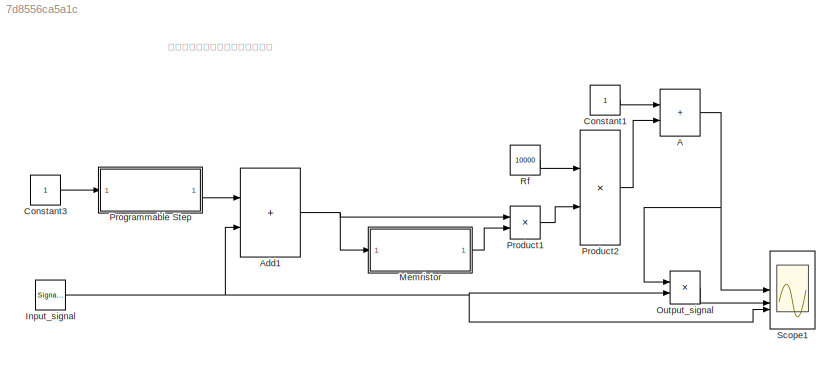
MODEL slx_7d8556ca5a1c
KIND model
CONFIG AbsTol = auto
CONFIG EnableMultiTasking = off
CONFIG FixedStep = auto
CONFIG MaxStep = auto
CONFIG MinStep = auto
CONFIG RelTol = 1e-3
CONFIG SampleTimeConstraint = Unconstrained
CONFIG SolverName = VariableStepAuto
CONFIG StartTime = 0.0
CONFIG StopTime = 10
WORKSPACE source: mxarray member
WORKSPACE R1 = 20
WORKSPACE R2 = 500
WORKSPACE VT = 0.5
WORKSPACE a = 500
WORKSPACE b = 1000
BLOCK [Sum] A
  IconShape = rectangular
BLOCK [Sum] Add1
  IconShape = rectangular
BLOCK [Constant] Constant1
BLOCK [Constant] Constant3
BLOCK [SignalGenerator] Input_signal
  Frequency = 10
  Units = rad/sec
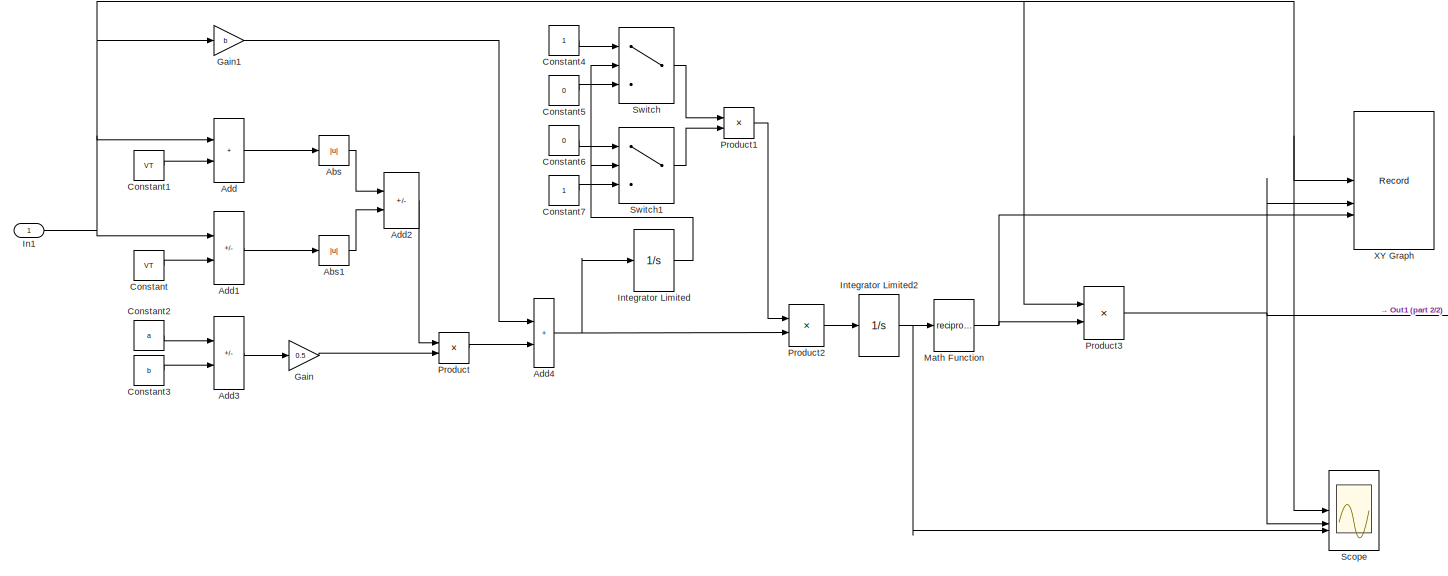
[diagram: Memristor - part 1/2, most of the canvas]
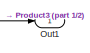
[diagram: Memristor - part 2/2, middle right region]
BLOCK [SubSystem] Memristor
BLOCK [Abs] Memristor/Abs
  SaturateOnIntegerOverflow = off
BLOCK [Abs] Memristor/Abs1
  SaturateOnIntegerOverflow = off
BLOCK [Sum] Memristor/Add
  IconShape = rectangular
BLOCK [Sum] Memristor/Add1
  IconShape = rectangular
  Inputs = +-
BLOCK [Sum] Memristor/Add2
  IconShape = rectangular
  Inputs = +-
BLOCK [Sum] Memristor/Add3
  IconShape = rectangular
  Inputs = +-
BLOCK [Sum] Memristor/Add4
  IconShape = rectangular
BLOCK [Constant] Memristor/Constant
  Value = VT
BLOCK [Constant] Memristor/Constant1
  Value = VT
BLOCK [Constant] Memristor/Constant2
  Value = a
BLOCK [Constant] Memristor/Constant3
  Value = b
BLOCK [Constant] Memristor/Constant4
  SampleTime = 0.001
BLOCK [Constant] Memristor/Constant5
  SampleTime = 0.001
  Value = 0
BLOCK [Constant] Memristor/Constant6
  SampleTime = 0.001
  Value = 0
BLOCK [Constant] Memristor/Constant7
  SampleTime = 0.001
BLOCK [Gain] Memristor/Gain
  Gain = 0.5
BLOCK [Gain] Memristor/Gain1
  Gain = b
BLOCK [Inport] Memristor/In1
BLOCK [Integrator] Memristor/Integrator Limited
  LowerSaturationLimit = 0
  UpperSaturationLimit = 1600
  WrappedStateLowerValue = 0
  WrappedStateUpperValue = 500
BLOCK [Integrator] Memristor/Integrator Limited2
  InitialCondition = 480
  LowerSaturationLimit = 0
  UpperSaturationLimit = 1600
  WrappedStateLowerValue = 0
  WrappedStateUpperValue = 500
BLOCK [Math] Memristor/Math Function
  Operator = reciprocal
BLOCK [Outport] Memristor/Out1
BLOCK [Product] Memristor/Product
BLOCK [Product] Memristor/Product1
BLOCK [Product] Memristor/Product2
BLOCK [Product] Memristor/Product3
BLOCK [Scope] Memristor/Scope
  Floating = off
  NumInputPorts = 3
  ScopeSpecificationString = Simulink.scopes.TimeScopeBlockCfg('CurrentConfiguration', extmgr.ConfigurationSet(extmgr.Configuration('Core','General UI',true),extmgr.Configuration('Core','Source UI',true),extmgr.Configuration('Sources','WiredSimulink',true,'DataLoggingVariableName','ScopeData1'),extmgr.Configuration('Visuals','Time Domain',true,'SerializedDisplays',{struct('MinYLimReal','-1.25','MaxYLimReal','1.25','YLabelReal...<+2911ch>
BLOCK [Switch] Memristor/Switch
  InputSameDT = off
  RndMeth = Ceiling
  SaturateOnIntegerOverflow = off
  Threshold = R1
BLOCK [Switch] Memristor/Switch1
  Criteria = u2 > Threshold
  InputSameDT = off
  RndMeth = Ceiling
  SaturateOnIntegerOverflow = off
  Threshold = R2
BLOCK [Record] Memristor/XY Graph
  CompatibilityTag = XY
  FileSettingsInternal = {"entries":[{"content":{"excelSettings":{"content":{},"type":"Streamout.ExcelSettings"}},"type":"Streamout.FileSettingStorage","uuid":""}],"packageUris":["http:\/\/schema.mathworks.com\/mf0\/streamout_blocks\/R2020a"],"version":"1.0"}
  Layout = [2 2]
  SignalsInternal = {"entries":[{"content":{"signals":[{"content":{"blockPath":[],"dimensions":[1],"domain":"","lineColor":"#a2142f","plots":[ 1, 9 ],"port":1,"signalID":1,"signalName":"In1"},"type":"RecordBlkView.Signal","uuid":""},{"content":{"blockPath":[],"dimensions":[1],"domain":"","lineColor":"#139fff","plots":[ 9 ],"port":2,"signalID":2,"signalName":"Product3"},"type":"RecordBlkView.Signal","uuid":""},{"conte...<+324ch>
  VisualizationBindings = {"xyplotplugin":{"info":[{"series":[{"bindingParametersList":[{"parameter":"X-Axis","signalID":3,"signalName":"Math\nFunction"}],"seriesID":0},{"bindingParametersList":[{"parameter":"X-Axis","signalID":1,"signalName":"In1"},{"parameter":"Y-Axis","signalID":3,"signalName":"Math\nFunction"}],"seriesID":1}],"subplotID":1},{"series":[{"bindingParametersList":[{"parameter":"X-Axis","signalID":1,"signal...<+106ch>
BLOCK [Product] Output_signal
BLOCK [Product] Product1
  Inputs = */
BLOCK [Product] Product2
  Inputs = */
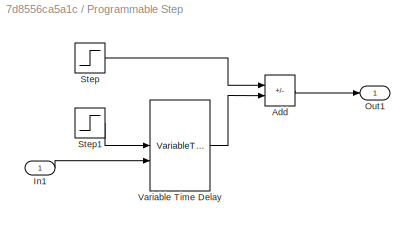
BLOCK [SubSystem] Programmable Step
BLOCK [Sum] Programmable Step/Add
  IconShape = rectangular
  Inputs = +-
BLOCK [Inport] Programmable Step/In1
BLOCK [Outport] Programmable Step/Out1
BLOCK [Step] Programmable Step/Step
  SampleTime = 0
  Time = 0
BLOCK [Step] Programmable Step/Step1
  SampleTime = 0
  Time = 0
BLOCK [VariableTransportDelay] Programmable Step/Variable Time Delay
  MaximumDelay = 10
BLOCK [Constant] Rf
  Value = 10000
BLOCK [Scope] Scope1
  Floating = off
  NumInputPorts = 3
  ScopeSpecificationString = Simulink.scopes.TimeScopeBlockCfg('CurrentConfiguration', extmgr.ConfigurationSet(extmgr.Configuration('Core','General UI',true,'FigureColor',[1 1 1]),extmgr.Configuration('Core','Source UI',true),extmgr.Configuration('Sources','WiredSimulink',true,'DataLoggingVariableName','ScopeData2'),extmgr.Configuration('Visuals','Time Domain',true,'SerializedDisplays',{struct('MinYLimReal','-15.94375','MaxYL...<+1693ch>
ANNOTATION (root): 连续可编程放大倍数的放大器仿真
NET A:1 -> Output_signal:1, Scope1:1
NET Add1:1 -> Memristor:1, Product1:1
LINE Constant1:1 -> A:1
LINE Constant3:1 -> Programmable Step:1
NET Input_signal:1 -> Add1:2, Output_signal:2, Scope1:3
LINE Memristor/Abs1:1 -> Memristor/Add2:2
LINE Memristor/Abs:1 -> Memristor/Add2:1
LINE Memristor/Add1:1 -> Memristor/Abs1:1
LINE Memristor/Add2:1 -> Memristor/Product:1
LINE Memristor/Add3:1 -> Memristor/Gain:1
NET Memristor/Add4:1 -> Memristor/Integrator Limited:1, Memristor/Product2:2
LINE Memristor/Add:1 -> Memristor/Abs:1
LINE Memristor/Constant1:1 -> Memristor/Add:2
LINE Memristor/Constant2:1 -> Memristor/Add3:1
LINE Memristor/Constant3:1 -> Memristor/Add3:2
LINE Memristor/Constant4:1 -> Memristor/Switch:1
LINE Memristor/Constant5:1 -> Memristor/Switch:3
LINE Memristor/Constant6:1 -> Memristor/Switch1:1
LINE Memristor/Constant7:1 -> Memristor/Switch1:3
LINE Memristor/Constant:1 -> Memristor/Add1:2
LINE Memristor/Gain1:1 -> Memristor/Add4:1
LINE Memristor/Gain:1 -> Memristor/Product:2
NET Memristor/In1:1 -> Memristor/Add1:1, Memristor/Add:1, Memristor/Gain1:1, Memristor/Product3:1, Memristor/Scope:1, Memristor/XY Graph:1
NET Memristor/Integrator Limited2:1 -> Memristor/Math Function:1, Memristor/Scope:3
NET Memristor/Integrator Limited:1 -> Memristor/Switch1:2, Memristor/Switch:2
NET Memristor/Math Function:1 -> Memristor/Product3:2, Memristor/XY Graph:3
LINE Memristor/Product1:1 -> Memristor/Product2:1
LINE Memristor/Product2:1 -> Memristor/Integrator Limited2:1
NET Memristor/Product3:1 -> Memristor/Out1:1, Memristor/Scope:2, Memristor/XY Graph:2
LINE Memristor/Product:1 -> Memristor/Add4:2
LINE Memristor/Switch1:1 -> Memristor/Product1:2
LINE Memristor/Switch:1 -> Memristor/Product1:1
LINE Memristor:1 -> Product1:2
LINE Output_signal:1 -> Scope1:2
LINE Product1:1 -> Product2:2
LINE Product2:1 -> A:2
LINE Programmable Step/Add:1 -> Programmable Step/Out1:1
LINE Programmable Step/In1:1 -> Programmable Step/Variable Time Delay:2
LINE Programmable Step/Step1:1 -> Programmable Step/Variable Time Delay:1
LINE Programmable Step/Step:1 -> Programmable Step/Add:1
LINE Programmable Step/Variable Time Delay:1 -> Programmable Step/Add:2
LINE Programmable Step:1 -> Add1:1
LINE Rf:1 -> Product2:1
note: NET lines group one-source signal fan-out (src -> all destinations, sorted); 1:1 wires keep LINE
